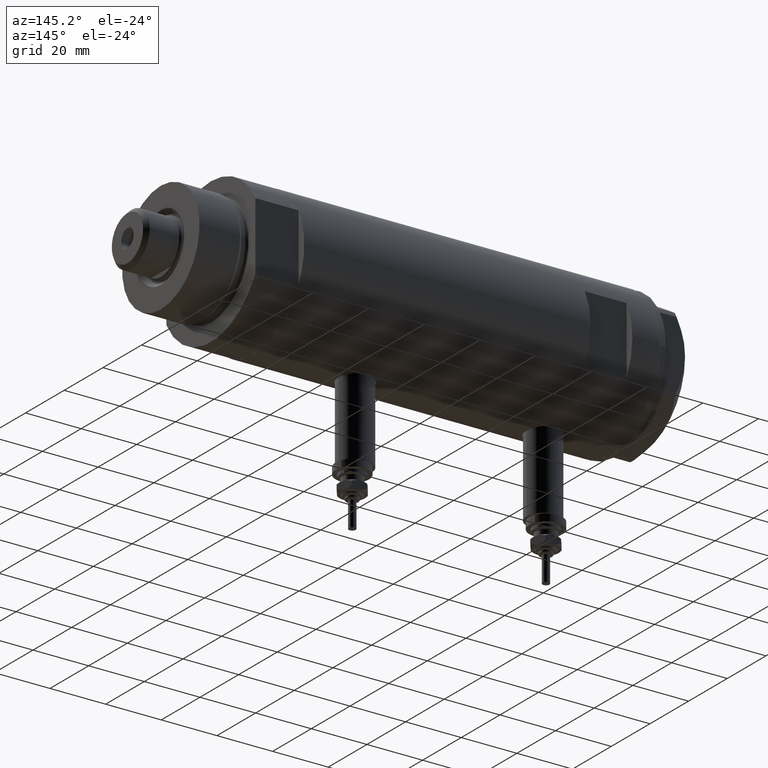
[diagram: clean part render]
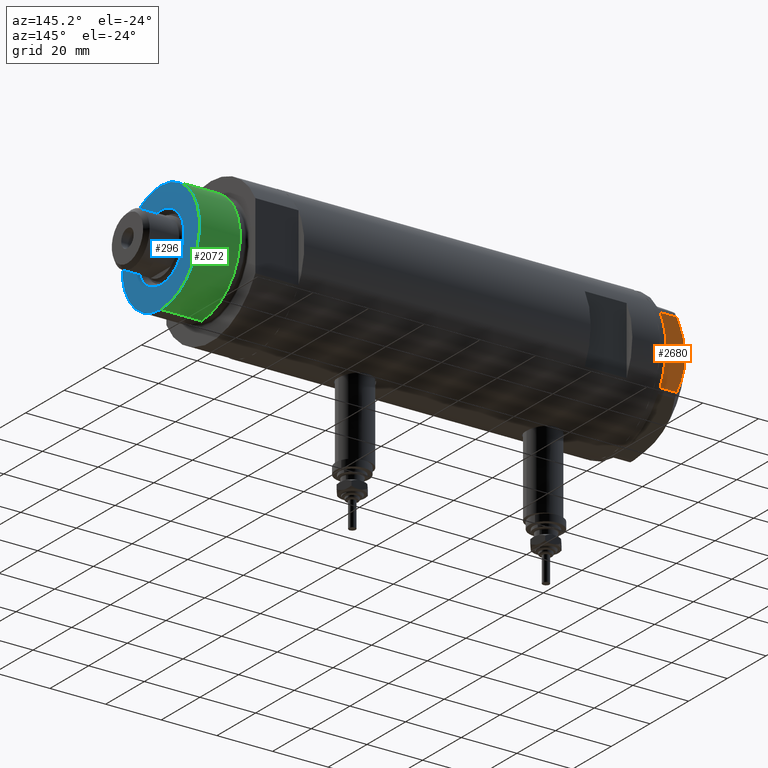
[diagram: same view with three faces highlighted in distinct colors, each labeled with its STEP entity id]
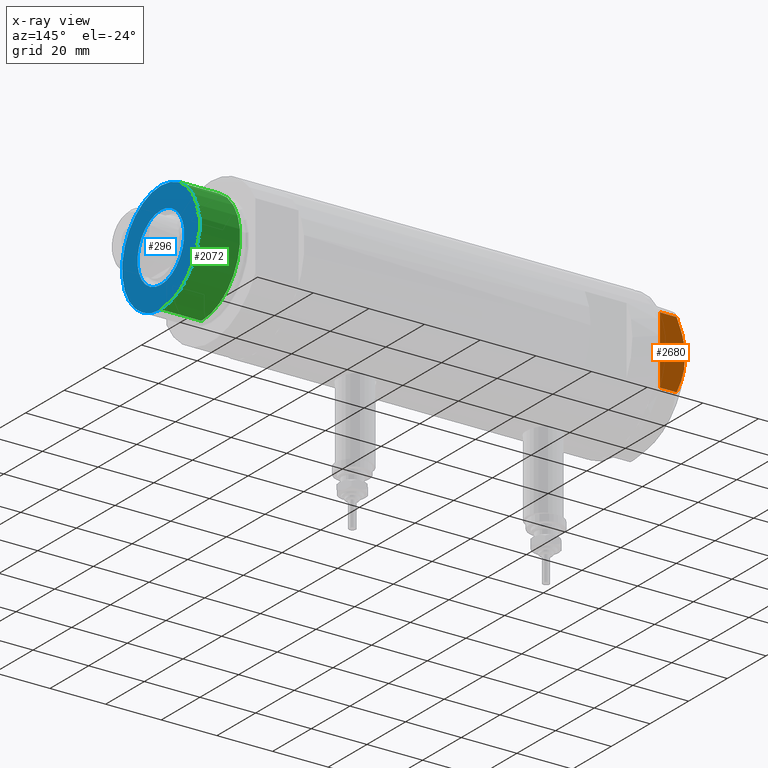
[diagram: x-ray of the same camera — body ghosted, the three highlighted faces saturated]
A machine part, auxiliary view with three faces highlighted in distinct colors.
The next image is the same camera in x-ray (body ghosted, the three faces saturated) — at least one of them is partly hidden behind the body in this view.
Their STEP definitions:

[orange] entity #2680 — the highlighted planar face has unit normal (0, -1, 0).
#28 = CARTESIAN_POINT ( 'NONE',  ( 22.99999999999990763, 4.203926054642127319, 8.641681223122510858 ) ) ;
#91 = CARTESIAN_POINT ( 'NONE',  ( 22.99999999999987921, 7.253003311474552461, 7.903276810347635184 ) ) ;
#191 = CARTESIAN_POINT ( 'NONE',  ( 23.00000000000008527, -13.27905619136115867, 0.000000000000000000 ) ) ;
#200 = CARTESIAN_POINT ( 'NONE',  ( 23.00000000000003197, -8.246028007352183664, 7.571131808646910599 ) ) ;
#202 = EDGE_CURVE ( 'NONE', #2323, #2367, #4573, .T. ) ;
#219 = DIRECTION ( 'NONE',  ( -1.032024811306395780E-14, 1.000000000000000000, 0.000000000000000000 ) ) ;
#224 = EDGE_CURVE ( 'NONE', #4030, #2323, #6160, .T. ) ;
#230 = VECTOR ( 'NONE', #4613, 1000.000000000000000 ) ;
#285 = DIRECTION ( 'NONE',  ( 0.000000000000000000, 0.000000000000000000, -1.000000000000000000 ) ) ;
#298 = LINE ( 'NONE', #3770, #5639 ) ;
#529 = LINE ( 'NONE', #4427, #5558 ) ;
#673 = DIRECTION ( 'NONE',  ( 1.032024811306395780E-14, -1.000000000000000000, 0.000000000000000000 ) ) ;
#682 = CARTESIAN_POINT ( 'NONE',  ( 22.99999999999999289, -4.194757081058811288, 8.703000351525204792 ) ) ;
#728 = ORIENTED_EDGE ( 'NONE', *, *, #2669, .F. ) ;
#740 = CARTESIAN_POINT ( 'NONE',  ( 23.00000000000002132, -6.734330413511252722, 8.039389741252669808 ) ) ;
#836 = VECTOR ( 'NONE', #285, 1000.000000000000000 ) ;
#1002 = EDGE_CURVE ( 'NONE', #4456, #5107, #3114, .T. ) ;
#1047 = CARTESIAN_POINT ( 'NONE',  ( 22.99999999999995026, 2.373657066004705010E-13, 9.000000000000000000 ) ) ;
#1082 = PLANE ( 'NONE',  #2397 ) ;
#1121 = CARTESIAN_POINT ( 'NONE',  ( 23.00000000000007461, -12.15905619136115590, 0.000000000000000000 ) ) ;
#1181 = EDGE_CURVE ( 'NONE', #1261, #4456, #298, .T. ) ;
#1230 = CARTESIAN_POINT ( 'NONE',  ( 23.00000000000007461, -12.15905619136115590, 9.000000000000000000 ) ) ;
#1261 = VERTEX_POINT ( 'NONE', #2955 ) ;
#1517 = CARTESIAN_POINT ( 'NONE',  ( 22.99999999999990052, 5.228918809624284236, 8.433337033849852560 ) ) ;
#1695 = CARTESIAN_POINT ( 'NONE',  ( 22.99999999999995026, 2.373657066004705010E-13, 9.000000000000000000 ) ) ;
#2042 = CARTESIAN_POINT ( 'NONE',  ( 22.99999999999983658, 10.22738952213810926, 6.832470313674774864 ) ) ;
#2057 = CARTESIAN_POINT ( 'NONE',  ( 23.00000000000007461, -12.15905619136115412, 5.983800287807623519 ) ) ;
#2109 = FACE_OUTER_BOUND ( 'NONE', #6008, .T. ) ;
#2140 = CARTESIAN_POINT ( 'NONE',  ( 23.00000000000008527, -13.27905619136115867, 9.000000000000000000 ) ) ;
#2176 = CARTESIAN_POINT ( 'NONE',  ( 23.00000000000005684, -10.23890159976104641, 6.840812428290920622 ) ) ;
#2261 = EDGE_CURVE ( 'NONE', #4030, #4906, #5440, .T. ) ;
#2323 = VERTEX_POINT ( 'NONE', #1121 ) ;
#2367 = VERTEX_POINT ( 'NONE', #4055 ) ;
#2397 = AXIS2_PLACEMENT_3D ( 'NONE', #2140, #3541, #673 ) ;
#2463 = CARTESIAN_POINT ( 'NONE',  ( 22.99999999999992539, 2.119709279062085727, 8.908535212173203988 ) ) ;
#2657 = CARTESIAN_POINT ( 'NONE',  ( 22.99999999999982947, 11.68282849742352525, 6.206372352695418648 ) ) ;
#2669 = EDGE_CURVE ( 'NONE', #4906, #5107, #6290, .T. ) ;
#2680 = ADVANCED_FACE ( 'NONE', ( #2109 ), #1082, .F. ) ;
#2955 = CARTESIAN_POINT ( 'NONE',  ( 22.99999999999982592, 12.12435565298247653, 0.000000000000000000 ) ) ;
#3006 = ORIENTED_EDGE ( 'NONE', *, *, #2261, .F. ) ;
#3008 = CARTESIAN_POINT ( 'NONE',  ( 22.99999999999986500, 8.252113629125430450, 7.581642062680224115 ) ) ;
#3075 = CARTESIAN_POINT ( 'NONE',  ( 23.00000000000006395, -11.20825071633898240, 6.428173306378455187 ) ) ;
#3114 = LINE ( 'NONE', #4062, #230 ) ;
#3130 = EDGE_CURVE ( 'NONE', #2367, #1261, #529, .T. ) ;
#3235 = CARTESIAN_POINT ( 'NONE',  ( 22.99999999999982236, 12.15905619136163729, 0.000000000000000000 ) ) ;
#3278 = ORIENTED_EDGE ( 'NONE', *, *, #202, .T. ) ;
#3541 = DIRECTION ( 'NONE',  ( -1.000000000000000000, -1.032024811306395780E-14, 0.000000000000000000 ) ) ;
#3770 = CARTESIAN_POINT ( 'NONE',  ( 23.00000000000008527, -13.27905619136115867, 0.000000000000000000 ) ) ;
#3859 = DIRECTION ( 'NONE',  ( -1.032024811306395780E-14, 1.000000000000000000, 0.000000000000000000 ) ) ;
#3978 = CARTESIAN_POINT ( 'NONE',  ( 22.99999999999984368, 11.20155944044832630, 6.421102682632754188 ) ) ;
#4030 = VERTEX_POINT ( 'NONE', #2057 ) ;
#4055 = CARTESIAN_POINT ( 'NONE',  ( 23.00000000000007461, -12.12435565298200224, 0.000000000000000000 ) ) ;
#4062 = CARTESIAN_POINT ( 'NONE',  ( 22.99999999999982236, 12.15905619136163729, 9.000000000000000000 ) ) ;
#4122 = CARTESIAN_POINT ( 'NONE',  ( 23.00000000000004263, -8.748091966971204059, 7.396818978284578350 ) ) ;
#4383 = ORIENTED_EDGE ( 'NONE', *, *, #1002, .T. ) ;
#4393 = CARTESIAN_POINT ( 'NONE',  ( 22.99999999999982236, 12.15905619136164262, 5.983800287807618190 ) ) ;
#4405 = CARTESIAN_POINT ( 'NONE',  ( 22.99999999999992184, 2.643615312305318099, 8.854304560636265364 ) ) ;
#4427 = CARTESIAN_POINT ( 'NONE',  ( 23.00000000000008527, -13.27905619136115867, 0.000000000000000000 ) ) ;
#4456 = VERTEX_POINT ( 'NONE', #3235 ) ;
#4463 = ORIENTED_EDGE ( 'NONE', *, *, #1181, .T. ) ;
#4471 = CARTESIAN_POINT ( 'NONE',  ( 22.99999999999985079, 9.734726261263462632, 7.028924700095659617 ) ) ;
#4546 = CARTESIAN_POINT ( 'NONE',  ( 23.00000000000007461, -12.15905619136115412, 5.983800287807623519 ) ) ;
#4573 = LINE ( 'NONE', #191, #6243 ) ;
#4607 = CARTESIAN_POINT ( 'NONE',  ( 23.00000000000002842, -7.239756182922028493, 7.892186063422852449 ) ) ;
#4613 = DIRECTION ( 'NONE',  ( 0.000000000000000000, 0.000000000000000000, 1.000000000000000000 ) ) ;
#4892 = CARTESIAN_POINT ( 'NONE',  ( 22.99999999999993960, 1.063773509315896648, 8.981438083606837708 ) ) ;
#4906 = VERTEX_POINT ( 'NONE', #6254 ) ;
#5107 = VERTEX_POINT ( 'NONE', #4393 ) ;
#5440 = B_SPLINE_CURVE_WITH_KNOTS ( 'NONE', 3,
 ( #4546, #3075, #2176, #4122, #200, #4607, #740, #682, #6076, #1695 ),
 .UNSPECIFIED., .F., .F.,
 ( 4, 2, 2, 2, 4 ),
 ( 0.03516523594057417712, 0.03831677594541235687, 0.03989254594783144675, 0.04146831595025053663, 0.04777139595992689614 ),
 .UNSPECIFIED. ) ;
#5494 = CARTESIAN_POINT ( 'NONE',  ( 22.99999999999982236, 12.15905619136164262, 5.983800287807618190 ) ) ;
#5558 = VECTOR ( 'NONE', #3859, 1000.000000000000000 ) ;
#5604 = DIRECTION ( 'NONE',  ( -1.032024811306395780E-14, 1.000000000000000000, 0.000000000000000000 ) ) ;
#5639 = VECTOR ( 'NONE', #5604, 1000.000000000000000 ) ;
#5801 = ORIENTED_EDGE ( 'NONE', *, *, #224, .T. ) ;
#5911 = CARTESIAN_POINT ( 'NONE',  ( 22.99999999999994671, 0.5295934231899334099, 9.000000000000095923 ) ) ;
#6008 = EDGE_LOOP ( 'NONE', ( #3006, #5801, #3278, #6317, #4463, #4383, #728 ) ) ;
#6076 = CARTESIAN_POINT ( 'NONE',  ( 22.99999999999997513, -2.122900714017905699, 9.000000000000095923 ) ) ;
#6160 = LINE ( 'NONE', #1230, #836 ) ;
#6243 = VECTOR ( 'NONE', #219, 1000.000000000000000 ) ;
#6254 = CARTESIAN_POINT ( 'NONE',  ( 22.99999999999995026, 2.373657066004705010E-13, 9.000000000000000000 ) ) ;
#6290 = B_SPLINE_CURVE_WITH_KNOTS ( 'NONE', 3,
 ( #1047, #5911, #4892, #2463, #4405, #28, #1517, #91, #3008, #4471, #2042, #3978, #2657, #5494 ),
 .UNSPECIFIED., .F., .F.,
 ( 4, 2, 2, 2, 2, 2, 4 ),
 ( 0.04777139595992689614, 0.04934380568070229067, 0.05091621540147768521, 0.05406103484302848122, 0.05720585428457927030, 0.05877826400535466483, 0.06035067372613005937 ),
 .UNSPECIFIED. ) ;
#6317 = ORIENTED_EDGE ( 'NONE', *, *, #3130, .T. ) ;

[blue] entity #296 — the highlighted planar face has unit normal (1, 0, -0).
#102 = DIRECTION ( 'NONE',  ( -0.000000000000000000, -0.000000000000000000, -1.000000000000000000 ) ) ;
#248 = AXIS2_PLACEMENT_3D ( 'NONE', #6227, #3251, #1264 ) ;
#288 = CARTESIAN_POINT ( 'NONE',  ( 12.05000000000000426, 0.000000000000000000, 33.50000000000000000 ) ) ;
#296 = ADVANCED_FACE ( 'NONE', ( #1357, #1418 ), #3312, .T. ) ;
#594 = VERTEX_POINT ( 'NONE', #1067 ) ;
#603 = CARTESIAN_POINT ( 'NONE',  ( 0.000000000000000000, 0.000000000000000000, 33.50000000000000000 ) ) ;
#607 = EDGE_CURVE ( 'NONE', #2810, #2749, #2785, .T. ) ;
#690 = CARTESIAN_POINT ( 'NONE',  ( 0.000000000000000000, 0.000000000000000000, 33.50000000000000000 ) ) ;
#696 = CARTESIAN_POINT ( 'NONE',  ( 0.000000000000000000, 0.000000000000000000, 33.50000000000000000 ) ) ;
#1022 = EDGE_CURVE ( 'NONE', #2940, #594, #1146, .T. ) ;
#1067 = CARTESIAN_POINT ( 'NONE',  ( -12.05000000000000426, 1.475699392972560823E-15, 33.50000000000000000 ) ) ;
#1146 = CIRCLE ( 'NONE', #1444, 12.05000000000000426 ) ;
#1171 = ORIENTED_EDGE ( 'NONE', *, *, #2935, .T. ) ;
#1205 = CARTESIAN_POINT ( 'NONE',  ( 19.99999999999999645, 2.449293598294706119E-15, 33.50000000000000000 ) ) ;
#1264 = DIRECTION ( 'NONE',  ( 1.000000000000000000, 0.000000000000000000, 0.000000000000000000 ) ) ;
#1357 = FACE_BOUND ( 'NONE', #2581, .T. ) ;
#1418 = FACE_OUTER_BOUND ( 'NONE', #1840, .T. ) ;
#1444 = AXIS2_PLACEMENT_3D ( 'NONE', #690, #102, #3144 ) ;
#1624 = ORIENTED_EDGE ( 'NONE', *, *, #1022, .T. ) ;
#1686 = CARTESIAN_POINT ( 'NONE',  ( -19.99999999999999645, 0.000000000000000000, 33.50000000000000000 ) ) ;
#1840 = EDGE_LOOP ( 'NONE', ( #1171, #5325 ) ) ;
#2073 = ORIENTED_EDGE ( 'NONE', *, *, #2746, .T. ) ;
#2378 = AXIS2_PLACEMENT_3D ( 'NONE', #696, #5512, #4102 ) ;
#2559 = DIRECTION ( 'NONE',  ( -0.000000000000000000, -0.000000000000000000, -1.000000000000000000 ) ) ;
#2581 = EDGE_LOOP ( 'NONE', ( #1624, #2073 ) ) ;
#2627 = DIRECTION ( 'NONE',  ( 1.000000000000000000, 0.000000000000000000, 0.000000000000000000 ) ) ;
#2746 = EDGE_CURVE ( 'NONE', #594, #2940, #5953, .T. ) ;
#2749 = VERTEX_POINT ( 'NONE', #1686 ) ;
#2785 = CIRCLE ( 'NONE', #2378, 19.99999999999999645 ) ;
#2810 = VERTEX_POINT ( 'NONE', #1205 ) ;
#2935 = EDGE_CURVE ( 'NONE', #2749, #2810, #5551, .T. ) ;
#2940 = VERTEX_POINT ( 'NONE', #288 ) ;
#3144 = DIRECTION ( 'NONE',  ( 1.000000000000000000, 0.000000000000000000, 0.000000000000000000 ) ) ;
#3251 = DIRECTION ( 'NONE',  ( 0.000000000000000000, 0.000000000000000000, 1.000000000000000000 ) ) ;
#3312 = PLANE ( 'NONE',  #3474 ) ;
#3474 = AXIS2_PLACEMENT_3D ( 'NONE', #5204, #3784, #4820 ) ;
#3784 = DIRECTION ( 'NONE',  ( 0.000000000000000000, 0.000000000000000000, 1.000000000000000000 ) ) ;
#4102 = DIRECTION ( 'NONE',  ( 1.000000000000000000, 0.000000000000000000, 0.000000000000000000 ) ) ;
#4820 = DIRECTION ( 'NONE',  ( 1.000000000000000000, 0.000000000000000000, -0.000000000000000000 ) ) ;
#4844 = AXIS2_PLACEMENT_3D ( 'NONE', #603, #2559, #2627 ) ;
#5204 = CARTESIAN_POINT ( 'NONE',  ( 0.000000000000000000, 0.000000000000000000, 33.50000000000000000 ) ) ;
#5325 = ORIENTED_EDGE ( 'NONE', *, *, #607, .T. ) ;
#5512 = DIRECTION ( 'NONE',  ( 0.000000000000000000, 0.000000000000000000, 1.000000000000000000 ) ) ;
#5551 = CIRCLE ( 'NONE', #248, 19.99999999999999645 ) ;
#5953 = CIRCLE ( 'NONE', #4844, 12.05000000000000426 ) ;
#6227 = CARTESIAN_POINT ( 'NONE',  ( 0.000000000000000000, 0.000000000000000000, 33.50000000000000000 ) ) ;

[green] entity #2072 — the highlighted cylindrical surface (partial cylindrical patch) has radius 20 mm, axis along (-1, -0, 0).
#31 = DIRECTION ( 'NONE',  ( -0.000000000000000000, -0.000000000000000000, 1.000000000000000000 ) ) ;
#124 = CIRCLE ( 'NONE', #5029, 19.99999999999999645 ) ;
#235 = CARTESIAN_POINT ( 'NONE',  ( 19.99999999999999645, 2.449293598294706119E-15, 33.50000000000000000 ) ) ;
#356 = LINE ( 'NONE', #2860, #6182 ) ;
#607 = EDGE_CURVE ( 'NONE', #2810, #2749, #2785, .T. ) ;
#696 = CARTESIAN_POINT ( 'NONE',  ( 0.000000000000000000, 0.000000000000000000, 33.50000000000000000 ) ) ;
#717 = LINE ( 'NONE', #235, #1039 ) ;
#1036 = EDGE_CURVE ( 'NONE', #2810, #4873, #717, .T. ) ;
#1039 = VECTOR ( 'NONE', #2181, 1000.000000000000000 ) ;
#1158 = AXIS2_PLACEMENT_3D ( 'NONE', #1406, #5317, #2928 ) ;
#1205 = CARTESIAN_POINT ( 'NONE',  ( 19.99999999999999645, 2.449293598294706119E-15, 33.50000000000000000 ) ) ;
#1214 = EDGE_CURVE ( 'NONE', #4873, #2028, #124, .T. ) ;
#1406 = CARTESIAN_POINT ( 'NONE',  ( 0.000000000000000000, 0.000000000000000000, 33.50000000000000000 ) ) ;
#1686 = CARTESIAN_POINT ( 'NONE',  ( -19.99999999999999645, 0.000000000000000000, 33.50000000000000000 ) ) ;
#1687 = ORIENTED_EDGE ( 'NONE', *, *, #6308, .F. ) ;
#1832 = CARTESIAN_POINT ( 'NONE',  ( -19.99999999999999645, 0.000000000000000000, 18.87384048104053846 ) ) ;
#1892 = DIRECTION ( 'NONE',  ( 1.000000000000000000, 0.000000000000000000, 0.000000000000000000 ) ) ;
#2028 = VERTEX_POINT ( 'NONE', #1832 ) ;
#2072 = ADVANCED_FACE ( 'NONE', ( #4321 ), #6276, .T. ) ;
#2181 = DIRECTION ( 'NONE',  ( -0.000000000000000000, -0.000000000000000000, -1.000000000000000000 ) ) ;
#2378 = AXIS2_PLACEMENT_3D ( 'NONE', #696, #5512, #4102 ) ;
#2749 = VERTEX_POINT ( 'NONE', #1686 ) ;
#2785 = CIRCLE ( 'NONE', #2378, 19.99999999999999645 ) ;
#2810 = VERTEX_POINT ( 'NONE', #1205 ) ;
#2860 = CARTESIAN_POINT ( 'NONE',  ( -19.99999999999999645, 0.000000000000000000, 33.50000000000000000 ) ) ;
#2928 = DIRECTION ( 'NONE',  ( -1.000000000000000000, 0.000000000000000000, 0.000000000000000000 ) ) ;
#4102 = DIRECTION ( 'NONE',  ( 1.000000000000000000, 0.000000000000000000, 0.000000000000000000 ) ) ;
#4108 = CARTESIAN_POINT ( 'NONE',  ( 19.99999999999999645, 2.449293598294706119E-15, 18.87384048104053846 ) ) ;
#4188 = ORIENTED_EDGE ( 'NONE', *, *, #1036, .T. ) ;
#4321 = FACE_OUTER_BOUND ( 'NONE', #5742, .T. ) ;
#4355 = CARTESIAN_POINT ( 'NONE',  ( 0.000000000000000000, 0.000000000000000000, 18.87384048104053846 ) ) ;
#4631 = ORIENTED_EDGE ( 'NONE', *, *, #607, .F. ) ;
#4803 = DIRECTION ( 'NONE',  ( -0.000000000000000000, -0.000000000000000000, -1.000000000000000000 ) ) ;
#4873 = VERTEX_POINT ( 'NONE', #4108 ) ;
#4958 = ORIENTED_EDGE ( 'NONE', *, *, #1214, .T. ) ;
#5029 = AXIS2_PLACEMENT_3D ( 'NONE', #4355, #31, #1892 ) ;
#5317 = DIRECTION ( 'NONE',  ( -0.000000000000000000, -0.000000000000000000, -1.000000000000000000 ) ) ;
#5512 = DIRECTION ( 'NONE',  ( 0.000000000000000000, 0.000000000000000000, 1.000000000000000000 ) ) ;
#5742 = EDGE_LOOP ( 'NONE', ( #4631, #4188, #4958, #1687 ) ) ;
#6182 = VECTOR ( 'NONE', #4803, 1000.000000000000000 ) ;
#6276 = CYLINDRICAL_SURFACE ( 'NONE', #1158, 19.99999999999999645 ) ;
#6308 = EDGE_CURVE ( 'NONE', #2749, #2028, #356, .T. ) ;